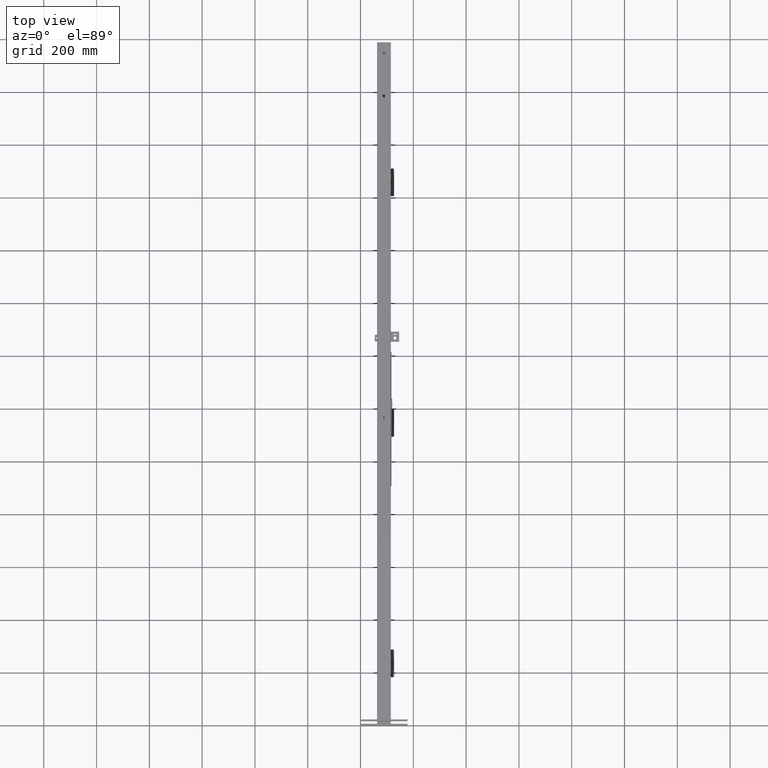
[diagram: clean part render]
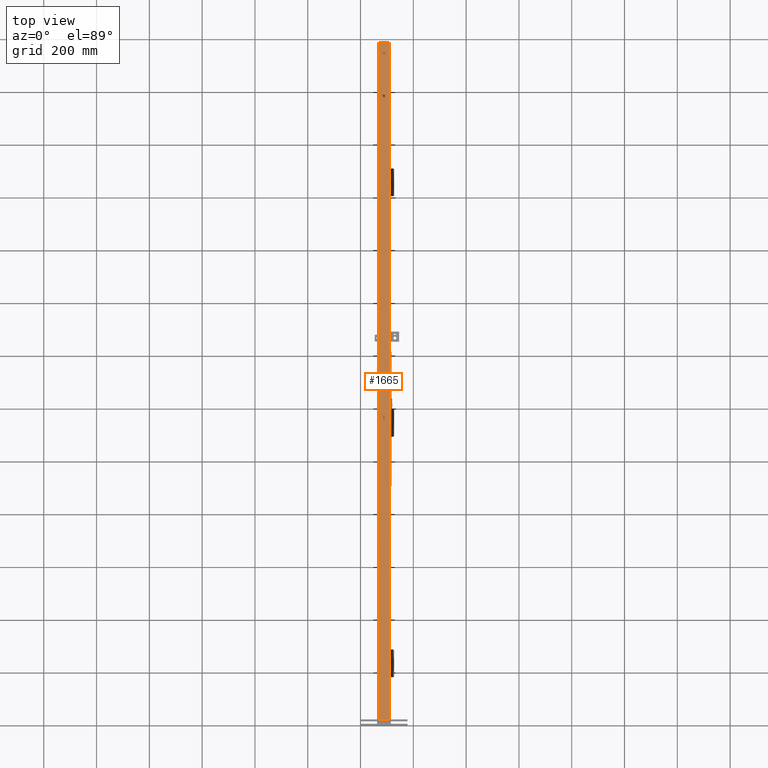
[diagram: same view with one face highlighted and labeled with its STEP entity id]
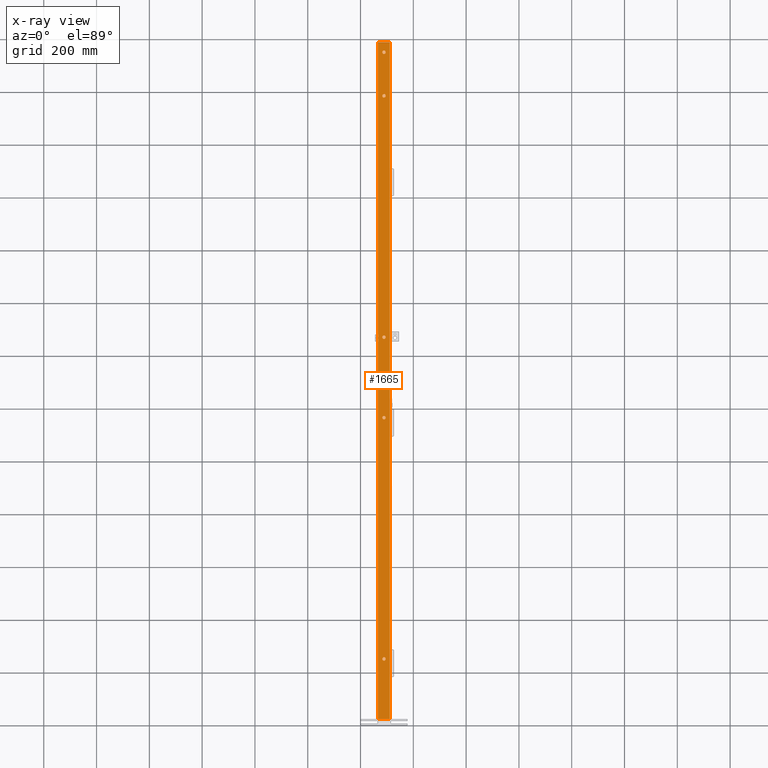
[diagram: x-ray of the same camera — body ghosted, the highlighted face saturated]
A machine part, top view. The second image highlights one B-rep face of the part: STEP entity #1665.
The next image is the same camera in x-ray: the body ghosted, the highlighted face saturated — about 0% of this face is hidden behind the body in this view.
In plain terms, the highlighted planar face has unit normal (0, 0, 1).
Its self-contained STEP definition (entity closure, byte-faithful):
#535=CARTESIAN_POINT('',(0.249999999999996,-0.999999999999972,99.500000000000000));
#536=VERTEX_POINT('',#535);
#537=CARTESIAN_POINT('',(-1.748383E-016,-0.999999999999972,99.500000000000000));
#538=DIRECTION('',(0.0,1.0,0.0));
#539=DIRECTION('',(-1.0,0.0,0.0));
#540=AXIS2_PLACEMENT_3D('',#537,#538,#539);
#541=CIRCLE('',#540,0.249999999999996);
#542=EDGE_CURVE('',#536,#536,#541,.T.);
#591=CARTESIAN_POINT('',(0.250000000000004,-0.999999999999972,93.0));
#592=VERTEX_POINT('',#591);
#593=CARTESIAN_POINT('',(0.0,-0.999999999999972,93.0));
#594=DIRECTION('',(0.0,1.0,0.0));
#595=DIRECTION('',(-1.0,0.0,0.0));
#596=AXIS2_PLACEMENT_3D('',#593,#594,#595);
#597=CIRCLE('',#596,0.250000000000004);
#598=EDGE_CURVE('',#592,#592,#597,.T.);
#647=CARTESIAN_POINT('',(0.250000000000002,-0.999999999999972,57.000000000000007));
#648=VERTEX_POINT('',#647);
#649=CARTESIAN_POINT('',(0.0,-0.999999999999972,57.000000000000007));
#650=DIRECTION('',(0.0,1.0,0.0));
#651=DIRECTION('',(-1.0,0.0,0.0));
#652=AXIS2_PLACEMENT_3D('',#649,#650,#651);
#653=CIRCLE('',#652,0.250000000000002);
#654=EDGE_CURVE('',#648,#648,#653,.T.);
#703=CARTESIAN_POINT('',(0.250000000000001,-0.999999999999972,45.000000000000007));
#704=VERTEX_POINT('',#703);
#705=CARTESIAN_POINT('',(0.0,-0.999999999999972,45.000000000000007));
#706=DIRECTION('',(0.0,1.0,0.0));
#707=DIRECTION('',(-1.0,0.0,0.0));
#708=AXIS2_PLACEMENT_3D('',#705,#706,#707);
#709=CIRCLE('',#708,0.250000000000001);
#710=EDGE_CURVE('',#704,#704,#709,.T.);
#759=CARTESIAN_POINT('',(0.250000000000000,-0.999999999999972,9.000000000000005));
#760=VERTEX_POINT('',#759);
#761=CARTESIAN_POINT('',(0.0,-0.999999999999972,9.000000000000005));
#762=DIRECTION('',(0.0,1.0,0.0));
#763=DIRECTION('',(-1.0,0.0,0.0));
#764=AXIS2_PLACEMENT_3D('',#761,#762,#763);
#765=CIRCLE('',#764,0.250000000000000);
#766=EDGE_CURVE('',#760,#760,#765,.T.);
#1355=CARTESIAN_POINT('',(-0.875000000000000,-0.999999999999972,100.999999999999990));
#1356=VERTEX_POINT('',#1355);
#1374=CARTESIAN_POINT('',(-0.875000000000000,-0.999999999999972,0.0));
#1375=VERTEX_POINT('',#1374);
#1383=CARTESIAN_POINT('',(-0.875000000000000,-0.999999999999972,0.0));
#1384=DIRECTION('',(0.0,0.0,1.0));
#1385=VECTOR('',#1384,100.999999999999990);
#1386=LINE('',#1383,#1385);
#1387=EDGE_CURVE('',#1375,#1356,#1386,.T.);
#1601=CARTESIAN_POINT('',(0.875000000000000,-0.999999999999972,100.999999999999990));
#1602=VERTEX_POINT('',#1601);
#1610=CARTESIAN_POINT('',(0.875000000000000,-0.999999999999972,0.0));
#1611=VERTEX_POINT('',#1610);
#1612=CARTESIAN_POINT('',(0.875000000000000,-0.999999999999972,0.0));
#1613=DIRECTION('',(0.0,0.0,1.0));
#1614=VECTOR('',#1613,100.999999999999990);
#1615=LINE('',#1612,#1614);
#1616=EDGE_CURVE('',#1611,#1602,#1615,.T.);
#1629=CARTESIAN_POINT('',(0.875000000000000,-0.999999999999972,0.0));
#1630=DIRECTION('',(0.0,-1.0,0.0));
#1631=DIRECTION('',(0.0,0.0,-1.0));
#1632=AXIS2_PLACEMENT_3D('',#1629,#1630,#1631);
#1633=PLANE('',#1632);
#1634=CARTESIAN_POINT('',(0.875000000000000,-0.999999999999972,100.999999999999990));
#1635=DIRECTION('',(-1.0,0.0,0.0));
#1636=VECTOR('',#1635,1.750000000000000);
#1637=LINE('',#1634,#1636);
#1638=EDGE_CURVE('',#1602,#1356,#1637,.T.);
#1639=ORIENTED_EDGE('',*,*,#1638,.T.);
#1640=ORIENTED_EDGE('',*,*,#1387,.F.);
#1641=CARTESIAN_POINT('',(0.875000000000000,-0.999999999999972,0.0));
#1642=DIRECTION('',(-1.0,0.0,0.0));
#1643=VECTOR('',#1642,1.750000000000000);
#1644=LINE('',#1641,#1643);
#1645=EDGE_CURVE('',#1611,#1375,#1644,.T.);
#1646=ORIENTED_EDGE('',*,*,#1645,.F.);
#1647=ORIENTED_EDGE('',*,*,#1616,.T.);
#1648=EDGE_LOOP('',(#1639,#1640,#1646,#1647));
#1649=FACE_OUTER_BOUND('',#1648,.T.);
#1650=ORIENTED_EDGE('',*,*,#542,.T.);
#1651=EDGE_LOOP('',(#1650));
#1652=FACE_BOUND('',#1651,.T.);
#1653=ORIENTED_EDGE('',*,*,#598,.T.);
#1654=EDGE_LOOP('',(#1653));
#1655=FACE_BOUND('',#1654,.T.);
#1656=ORIENTED_EDGE('',*,*,#654,.T.);
#1657=EDGE_LOOP('',(#1656));
#1658=FACE_BOUND('',#1657,.T.);
#1659=ORIENTED_EDGE('',*,*,#710,.T.);
#1660=EDGE_LOOP('',(#1659));
#1661=FACE_BOUND('',#1660,.T.);
#1662=ORIENTED_EDGE('',*,*,#766,.T.);
#1663=EDGE_LOOP('',(#1662));
#1664=FACE_BOUND('',#1663,.T.);
#1665=ADVANCED_FACE('',(#1649,#1652,#1655,#1658,#1661,#1664),#1633,.T.);